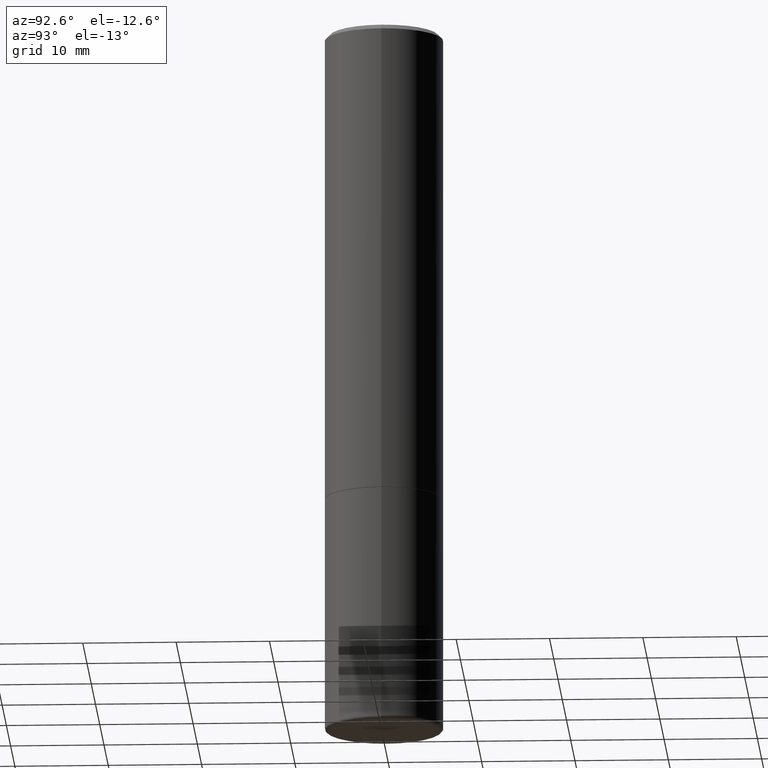
[diagram: clean part render]
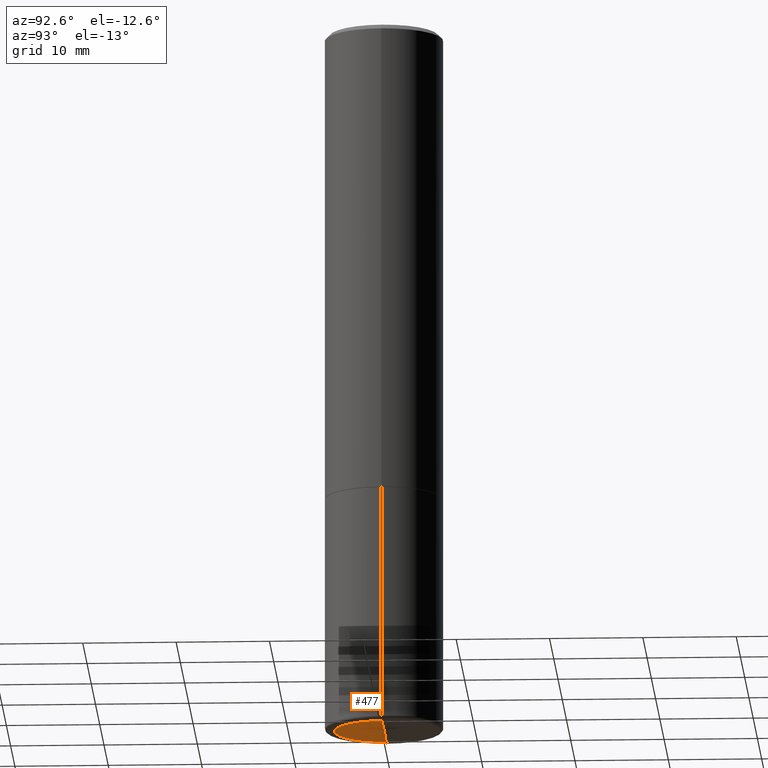
[diagram: same view with one face highlighted and labeled with its STEP entity id]
A machine part, auxiliary view. The second image highlights one B-rep face of the part: STEP entity #477.
In plain terms, the highlighted conical surface has half-angle 88 deg.
Its self-contained STEP definition (entity closure, byte-faithful):
#30 = AXIS2_PLACEMENT_3D ( 'NONE', #375, #365, #149 ) ;
#67 = CARTESIAN_POINT ( 'NONE',  ( 7.335837353245335032E-29, -1.047363154208458493E-14, -2.999767298070359800 ) ) ;
#103 = CARTESIAN_POINT ( 'NONE',  ( 7.318124011218951646E-29, -1.044815055147217763E-14, -2.992496650618315268 ) ) ;
#110 = EDGE_CURVE ( 'NONE', #322, #241, #179, .T. ) ;
#149 = DIRECTION ( 'NONE',  ( 1.000000000000000000, -6.982962677686269077E-15, 0.000000000000000000 ) ) ;
#155 = DIRECTION ( 'NONE',  ( -0.9993908270190957621, 6.856857904024552526E-15, -0.03489949670250241942 ) ) ;
#175 = VECTOR ( 'NONE', #215, 39.37007874015747433 ) ;
#179 = LINE ( 'NONE', #402, #202 ) ;
#184 = ORIENTED_EDGE ( 'NONE', *, *, #110, .F. ) ;
#186 = FACE_OUTER_BOUND ( 'NONE', #246, .T. ) ;
#202 = VECTOR ( 'NONE', #155, 39.37007874015747433 ) ;
#215 = DIRECTION ( 'NONE',  ( 0.9993908270190957621, -6.978169709227547799E-15, -0.03489949670250241942 ) ) ;
#226 = DIRECTION ( 'NONE',  ( 2.445468806185136597E-29, -3.491481338843145583E-15, -1.000000000000000000 ) ) ;
#241 = VERTEX_POINT ( 'NONE', #381 ) ;
#246 = EDGE_LOOP ( 'NONE', ( #184, #476, #345 ) ) ;
#249 = AXIS2_PLACEMENT_3D ( 'NONE', #67, #226, #372 ) ;
#260 = CIRCLE ( 'NONE', #30, 0.2082041019675246463 ) ;
#292 = EDGE_CURVE ( 'NONE', #322, #391, #333, .T. ) ;
#296 = CONICAL_SURFACE ( 'NONE', #249, 0.2082041019675246463, 1.535889741755008586 ) ;
#322 = VERTEX_POINT ( 'NONE', #103 ) ;
#333 = LINE ( 'NONE', #483, #175 ) ;
#345 = ORIENTED_EDGE ( 'NONE', *, *, #418, .F. ) ;
#365 = DIRECTION ( 'NONE',  ( -2.445468806185136597E-29, 3.491481338843145583E-15, 1.000000000000000000 ) ) ;
#372 = DIRECTION ( 'NONE',  ( -1.000000000000000000, 6.982962677686269077E-15, 0.000000000000000000 ) ) ;
#375 = CARTESIAN_POINT ( 'NONE',  ( 7.335837353245335032E-29, -1.047363154208458493E-14, -2.999767298070359800 ) ) ;
#381 = CARTESIAN_POINT ( 'NONE',  ( -0.2082041019675246463, -9.019750068704174352E-15, -2.999767298070359800 ) ) ;
#383 = CARTESIAN_POINT ( 'NONE',  ( 0.2082041019675246463, -1.190201536676060908E-14, -2.999767298070359800 ) ) ;
#391 = VERTEX_POINT ( 'NONE', #383 ) ;
#402 = CARTESIAN_POINT ( 'NONE',  ( -0.2082041019675246463, -9.019750068704174352E-15, -2.999767298070359800 ) ) ;
#418 = EDGE_CURVE ( 'NONE', #241, #391, #260, .T. ) ;
#476 = ORIENTED_EDGE ( 'NONE', *, *, #292, .T. ) ;
#477 = ADVANCED_FACE ( 'NONE', ( #186 ), #296, .F. ) ;
#483 = CARTESIAN_POINT ( 'NONE',  ( 0.2082041019675246463, -1.190201536676060908E-14, -2.999767298070359800 ) ) ;